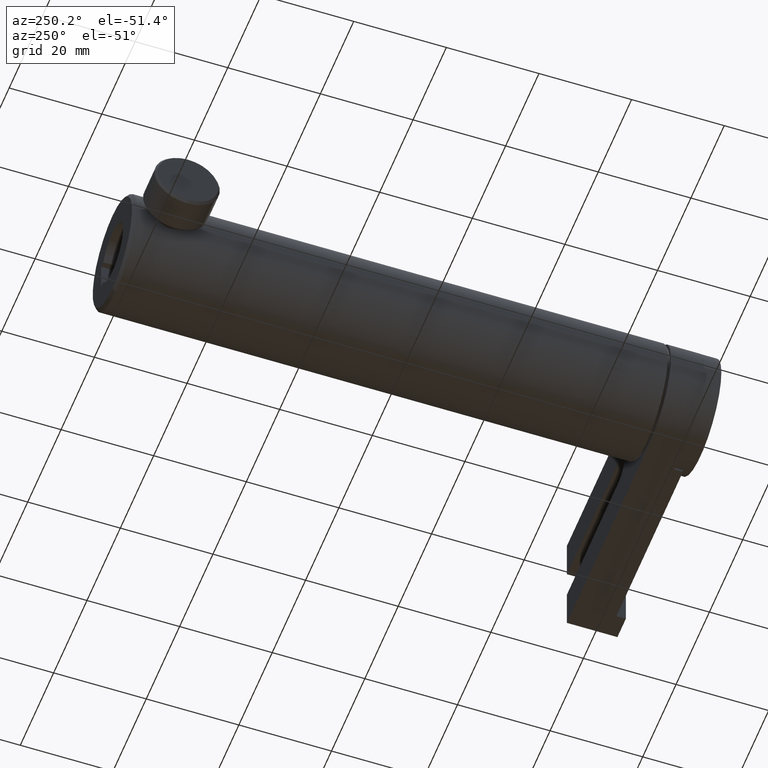
[diagram: clean part render]
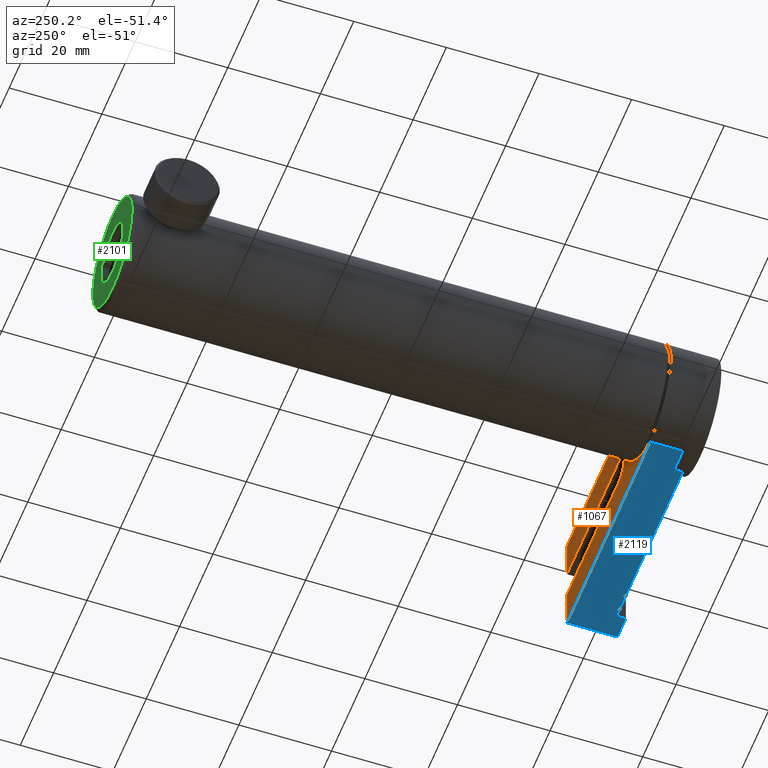
[diagram: same view with three faces highlighted in distinct colors, each labeled with its STEP entity id]
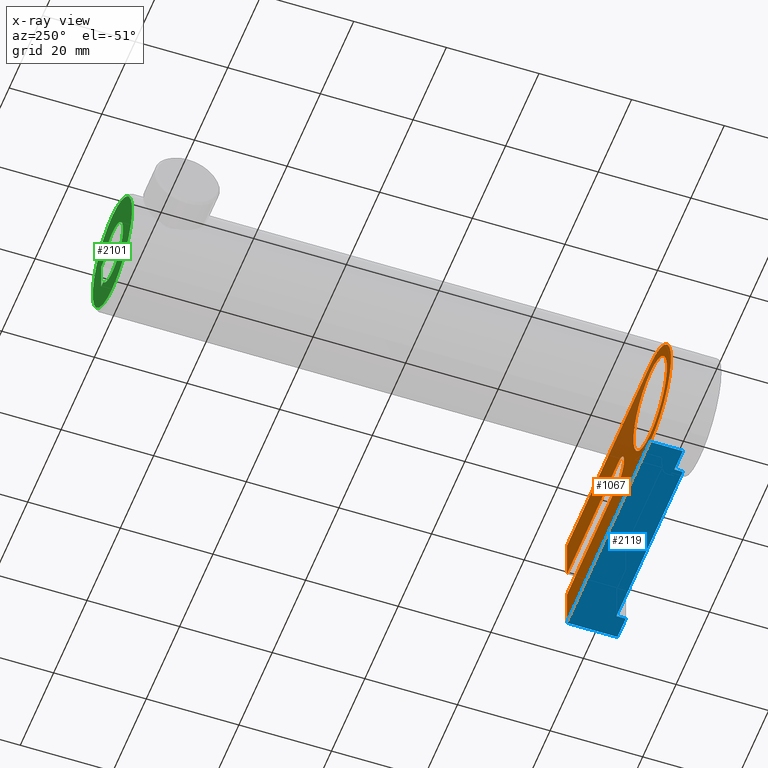
[diagram: x-ray of the same camera — body ghosted, the three highlighted faces saturated]
A machine part, auxiliary view with three faces highlighted in distinct colors.
The next image is the same camera in x-ray (body ghosted, the three faces saturated) — at least one of them is partly hidden behind the body in this view.
Their STEP definitions:

[orange] entity #1067 — the highlighted planar face has unit normal (0, 1, -0).
#116 = ORIENTED_EDGE ( 'NONE', *, *, #1864, .F. ) ;
#184 = CARTESIAN_POINT ( 'NONE',  ( 54.12306664389138400, 5.698134787764893800, 3.365500000000003900 ) ) ;
#220 = CARTESIAN_POINT ( 'NONE',  ( 4.123066643891380800, 5.698134787764893800, 0.0000000000000000000 ) ) ;
#252 = LINE ( 'NONE', #737, #1216 ) ;
#283 = LINE ( 'NONE', #1414, #2823 ) ;
#300 = AXIS2_PLACEMENT_3D ( 'NONE', #2579, #812, #2264 ) ;
#434 = ORIENTED_EDGE ( 'NONE', *, *, #1644, .F. ) ;
#472 = CIRCLE ( 'NONE', #3448, 10.04570000000000200 ) ;
#541 = VERTEX_POINT ( 'NONE', #908 ) ;
#570 = CIRCLE ( 'NONE', #1037, 3.365500000000003000 ) ;
#574 = LINE ( 'NONE', #2895, #1944 ) ;
#591 = DIRECTION ( 'NONE',  ( 0.0000000000000000000, 1.000000000000000000, -0.0000000000000000000 ) ) ;
#612 = VERTEX_POINT ( 'NONE', #1003 ) ;
#725 = CARTESIAN_POINT ( 'NONE',  ( 54.12306664389138400, 5.698134787764893800, 8.999471541716452500E-015 ) ) ;
#727 = ORIENTED_EDGE ( 'NONE', *, *, #2973, .T. ) ;
#737 = CARTESIAN_POINT ( 'NONE',  ( -29.62103515794081700, 5.698134787764893800, -3.365499999999993700 ) ) ;
#739 = DIRECTION ( 'NONE',  ( 0.0000000000000000000, 1.000000000000000000, -0.0000000000000000000 ) ) ;
#758 = FACE_OUTER_BOUND ( 'NONE', #1979, .T. ) ;
#812 = DIRECTION ( 'NONE',  ( 0.0000000000000000000, 1.000000000000000000, -0.0000000000000000000 ) ) ;
#862 = PLANE ( 'NONE',  #3405 ) ;
#885 = ORIENTED_EDGE ( 'NONE', *, *, #2287, .F. ) ;
#908 = CARTESIAN_POINT ( 'NONE',  ( 23.17306664389137800, 5.698134787764893800, -3.365499999999999900 ) ) ;
#945 = EDGE_CURVE ( 'NONE', #3704, #2482, #1744, .T. ) ;
#1003 = CARTESIAN_POINT ( 'NONE',  ( 23.17306664389137800, 5.698134787764893800, 3.365500000000006200 ) ) ;
#1037 = AXIS2_PLACEMENT_3D ( 'NONE', #1038, #739, #3106 ) ;
#1038 = CARTESIAN_POINT ( 'NONE',  ( 23.17306664389138500, 5.698134787764893800, 0.0000000000000000000 ) ) ;
#1067 = ADVANCED_FACE ( 'NONE', ( #758, #1115 ), #862, .T. ) ;
#1069 = CARTESIAN_POINT ( 'NONE',  ( 54.12306664389138400, 5.698134787764893800, -12.49679999999999900 ) ) ;
#1115 = FACE_BOUND ( 'NONE', #3303, .T. ) ;
#1133 = DIRECTION ( 'NONE',  ( 0.0000000000000000000, 0.0000000000000000000, 1.000000000000000000 ) ) ;
#1216 = VECTOR ( 'NONE', #2544, 1000.000000000000000 ) ;
#1246 = VERTEX_POINT ( 'NONE', #184 ) ;
#1414 = CARTESIAN_POINT ( 'NONE',  ( -29.62103515794081700, 5.698134787764893800, 12.49679999999999900 ) ) ;
#1493 = EDGE_CURVE ( 'NONE', #3704, #2398, #2591, .T. ) ;
#1549 = ORIENTED_EDGE ( 'NONE', *, *, #945, .T. ) ;
#1566 = ORIENTED_EDGE ( 'NONE', *, *, #2449, .F. ) ;
#1644 = EDGE_CURVE ( 'NONE', #541, #612, #570, .T. ) ;
#1719 = DIRECTION ( 'NONE',  ( 1.000000000000000000, -0.0000000000000000000, 0.0000000000000000000 ) ) ;
#1744 = CIRCLE ( 'NONE', #3075, 12.49679999999999900 ) ;
#1824 = CARTESIAN_POINT ( 'NONE',  ( 54.12306664389138400, 5.698134787764893800, 8.999471541716452500E-015 ) ) ;
#1835 = ORIENTED_EDGE ( 'NONE', *, *, #1919, .T. ) ;
#1864 = EDGE_CURVE ( 'NONE', #2232, #3569, #472, .T. ) ;
#1919 = EDGE_CURVE ( 'NONE', #2482, #3329, #283, .T. ) ;
#1944 = VECTOR ( 'NONE', #2582, 1000.000000000000000 ) ;
#1975 = CARTESIAN_POINT ( 'NONE',  ( 4.123066643891380800, 5.698134787764893800, 12.49679999999999900 ) ) ;
#1979 = EDGE_LOOP ( 'NONE', ( #1835, #727, #2781, #434, #2596, #885, #2135, #1549 ) ) ;
#2003 = DIRECTION ( 'NONE',  ( 0.0000000000000000000, 1.000000000000000000, -0.0000000000000000000 ) ) ;
#2046 = DIRECTION ( 'NONE',  ( 0.0000000000000000000, 1.000000000000000000, -0.0000000000000000000 ) ) ;
#2097 = DIRECTION ( 'NONE',  ( 0.0000000000000000000, 0.0000000000000000000, -1.000000000000000000 ) ) ;
#2135 = ORIENTED_EDGE ( 'NONE', *, *, #1493, .F. ) ;
#2164 = VERTEX_POINT ( 'NONE', #2715 ) ;
#2182 = DIRECTION ( 'NONE',  ( 0.0000000000000000000, 0.0000000000000000000, 1.000000000000000000 ) ) ;
#2232 = VERTEX_POINT ( 'NONE', #2766 ) ;
#2264 = DIRECTION ( 'NONE',  ( 0.0000000000000000000, 0.0000000000000000000, 1.000000000000000000 ) ) ;
#2287 = EDGE_CURVE ( 'NONE', #2398, #2164, #3615, .T. ) ;
#2398 = VERTEX_POINT ( 'NONE', #1069 ) ;
#2449 = EDGE_CURVE ( 'NONE', #3569, #2232, #2880, .T. ) ;
#2482 = VERTEX_POINT ( 'NONE', #1975 ) ;
#2494 = CARTESIAN_POINT ( 'NONE',  ( 4.123066643891380800, 5.698134787764893800, -12.49679999999999900 ) ) ;
#2544 = DIRECTION ( 'NONE',  ( -1.000000000000000000, 0.0000000000000000000, 1.261107535039681900E-016 ) ) ;
#2550 = EDGE_CURVE ( 'NONE', #1246, #612, #574, .T. ) ;
#2579 = CARTESIAN_POINT ( 'NONE',  ( 4.123066643891380800, 5.698134787764893800, 0.0000000000000000000 ) ) ;
#2582 = DIRECTION ( 'NONE',  ( -1.000000000000000000, 0.0000000000000000000, 7.006152972442677000E-017 ) ) ;
#2591 = LINE ( 'NONE', #2808, #2784 ) ;
#2596 = ORIENTED_EDGE ( 'NONE', *, *, #3730, .F. ) ;
#2715 = CARTESIAN_POINT ( 'NONE',  ( 54.12306664389138400, 5.698134787764893800, -3.365500000000003900 ) ) ;
#2766 = CARTESIAN_POINT ( 'NONE',  ( 4.123066643891381700, 5.698134787764893800, 10.04570000000000200 ) ) ;
#2781 = ORIENTED_EDGE ( 'NONE', *, *, #2550, .T. ) ;
#2784 = VECTOR ( 'NONE', #3388, 1000.000000000000000 ) ;
#2808 = CARTESIAN_POINT ( 'NONE',  ( -29.62103515794081700, 5.698134787764893800, -12.49679999999999900 ) ) ;
#2823 = VECTOR ( 'NONE', #1719, 1000.000000000000000 ) ;
#2880 = CIRCLE ( 'NONE', #300, 10.04570000000000200 ) ;
#2895 = CARTESIAN_POINT ( 'NONE',  ( -29.62103515794081700, 5.698134787764893800, 3.365500000000010200 ) ) ;
#2916 = CARTESIAN_POINT ( 'NONE',  ( -29.62103515794081700, 5.698134787764893800, 8.999471541716452500E-015 ) ) ;
#2929 = CARTESIAN_POINT ( 'NONE',  ( 54.12306664389138400, 5.698134787764893800, 12.49679999999999900 ) ) ;
#2971 = VECTOR ( 'NONE', #2182, 1000.000000000000000 ) ;
#2973 = EDGE_CURVE ( 'NONE', #3329, #1246, #3586, .T. ) ;
#3075 = AXIS2_PLACEMENT_3D ( 'NONE', #3634, #2046, #1133 ) ;
#3106 = DIRECTION ( 'NONE',  ( 0.0000000000000000000, 0.0000000000000000000, 1.000000000000000000 ) ) ;
#3171 = DIRECTION ( 'NONE',  ( 0.0000000000000000000, 0.0000000000000000000, 1.000000000000000000 ) ) ;
#3303 = EDGE_LOOP ( 'NONE', ( #1566, #116 ) ) ;
#3329 = VERTEX_POINT ( 'NONE', #2929 ) ;
#3388 = DIRECTION ( 'NONE',  ( 1.000000000000000000, -0.0000000000000000000, 0.0000000000000000000 ) ) ;
#3405 = AXIS2_PLACEMENT_3D ( 'NONE', #2916, #591, #3528 ) ;
#3448 = AXIS2_PLACEMENT_3D ( 'NONE', #220, #2003, #3171 ) ;
#3493 = VECTOR ( 'NONE', #2097, 1000.000000000000000 ) ;
#3528 = DIRECTION ( 'NONE',  ( 0.0000000000000000000, 0.0000000000000000000, 1.000000000000000000 ) ) ;
#3569 = VERTEX_POINT ( 'NONE', #3650 ) ;
#3586 = LINE ( 'NONE', #1824, #3493 ) ;
#3615 = LINE ( 'NONE', #725, #2971 ) ;
#3634 = CARTESIAN_POINT ( 'NONE',  ( 4.123066643891380800, 5.698134787764893800, 0.0000000000000000000 ) ) ;
#3650 = CARTESIAN_POINT ( 'NONE',  ( 4.123066643891380800, 5.698134787764893800, -10.04570000000000200 ) ) ;
#3704 = VERTEX_POINT ( 'NONE', #2494 ) ;
#3730 = EDGE_CURVE ( 'NONE', #2164, #541, #252, .T. ) ;

[blue] entity #2119 — the highlighted planar face has unit normal (0, 0, -1).
#168 = ORIENTED_EDGE ( 'NONE', *, *, #3695, .F. ) ;
#179 = CARTESIAN_POINT ( 'NONE',  ( 9.203066643891382600, -1.363065212235106600, -12.49679999999999900 ) ) ;
#305 = EDGE_CURVE ( 'NONE', #2398, #2831, #2496, .T. ) ;
#308 = DIRECTION ( 'NONE',  ( -0.0000000000000000000, -1.000000000000000000, -0.0000000000000000000 ) ) ;
#439 = ORIENTED_EDGE ( 'NONE', *, *, #2049, .F. ) ;
#477 = LINE ( 'NONE', #3639, #2733 ) ;
#486 = LINE ( 'NONE', #2061, #900 ) ;
#607 = VECTOR ( 'NONE', #1621, 1000.000000000000000 ) ;
#631 = VERTEX_POINT ( 'NONE', #2161 ) ;
#781 = EDGE_CURVE ( 'NONE', #3242, #2170, #3691, .T. ) ;
#872 = CARTESIAN_POINT ( 'NONE',  ( -29.62103515794081700, -5.223865212235105900, -12.49679999999999900 ) ) ;
#900 = VECTOR ( 'NONE', #308, 1000.000000000000000 ) ;
#998 = DIRECTION ( 'NONE',  ( 1.000000000000000000, 0.0000000000000000000, 0.0000000000000000000 ) ) ;
#1048 = DIRECTION ( 'NONE',  ( 0.0000000000000000000, -1.000000000000000000, 0.0000000000000000000 ) ) ;
#1069 = CARTESIAN_POINT ( 'NONE',  ( 54.12306664389138400, 5.698134787764893800, -12.49679999999999900 ) ) ;
#1136 = VERTEX_POINT ( 'NONE', #1192 ) ;
#1192 = CARTESIAN_POINT ( 'NONE',  ( 49.04306664389137900, -3.191865212235105400, -12.49679999999999900 ) ) ;
#1238 = CARTESIAN_POINT ( 'NONE',  ( 9.203066643891382600, -3.191865212235105400, -12.49679999999999900 ) ) ;
#1268 = CARTESIAN_POINT ( 'NONE',  ( 54.12306664389138400, 5.698134787764893800, -12.49679999999999900 ) ) ;
#1314 = ORIENTED_EDGE ( 'NONE', *, *, #305, .T. ) ;
#1356 = ORIENTED_EDGE ( 'NONE', *, *, #2035, .F. ) ;
#1418 = AXIS2_PLACEMENT_3D ( 'NONE', #3597, #2998, #3629 ) ;
#1493 = EDGE_CURVE ( 'NONE', #3704, #2398, #2591, .T. ) ;
#1516 = VECTOR ( 'NONE', #3600, 1000.000000000000000 ) ;
#1586 = EDGE_CURVE ( 'NONE', #2170, #1136, #477, .T. ) ;
#1621 = DIRECTION ( 'NONE',  ( 0.0000000000000000000, -1.000000000000000000, 0.0000000000000000000 ) ) ;
#1647 = CARTESIAN_POINT ( 'NONE',  ( 23.17306664389138500, -1.363065212235106600, -12.49679999999999900 ) ) ;
#1705 = VERTEX_POINT ( 'NONE', #3406 ) ;
#1718 = LINE ( 'NONE', #3417, #3664 ) ;
#1812 = PLANE ( 'NONE',  #1418 ) ;
#2035 = EDGE_CURVE ( 'NONE', #3704, #631, #486, .T. ) ;
#2049 = EDGE_CURVE ( 'NONE', #1705, #2831, #3758, .T. ) ;
#2061 = CARTESIAN_POINT ( 'NONE',  ( 4.123066643891380800, 5.698134787764893800, -12.49679999999999900 ) ) ;
#2087 = CARTESIAN_POINT ( 'NONE',  ( 54.12306664389138400, -5.223865212235105900, -12.49679999999999900 ) ) ;
#2119 = ADVANCED_FACE ( 'NONE', ( #2235 ), #1812, .T. ) ;
#2161 = CARTESIAN_POINT ( 'NONE',  ( 4.123066643891380800, -1.363065212235106600, -12.49679999999999900 ) ) ;
#2170 = VERTEX_POINT ( 'NONE', #1238 ) ;
#2235 = FACE_OUTER_BOUND ( 'NONE', #3197, .T. ) ;
#2302 = ORIENTED_EDGE ( 'NONE', *, *, #781, .F. ) ;
#2391 = EDGE_CURVE ( 'NONE', #631, #3242, #2645, .T. ) ;
#2398 = VERTEX_POINT ( 'NONE', #1069 ) ;
#2494 = CARTESIAN_POINT ( 'NONE',  ( 4.123066643891380800, 5.698134787764893800, -12.49679999999999900 ) ) ;
#2496 = LINE ( 'NONE', #1268, #1516 ) ;
#2591 = LINE ( 'NONE', #2808, #2784 ) ;
#2602 = VECTOR ( 'NONE', #3415, 1000.000000000000000 ) ;
#2645 = LINE ( 'NONE', #1647, #2602 ) ;
#2733 = VECTOR ( 'NONE', #998, 1000.000000000000000 ) ;
#2784 = VECTOR ( 'NONE', #3388, 1000.000000000000000 ) ;
#2808 = CARTESIAN_POINT ( 'NONE',  ( -29.62103515794081700, 5.698134787764893800, -12.49679999999999900 ) ) ;
#2831 = VERTEX_POINT ( 'NONE', #2087 ) ;
#2937 = DIRECTION ( 'NONE',  ( 1.000000000000000000, -0.0000000000000000000, 0.0000000000000000000 ) ) ;
#2998 = DIRECTION ( 'NONE',  ( 0.0000000000000000000, 0.0000000000000000000, -1.000000000000000000 ) ) ;
#3197 = EDGE_LOOP ( 'NONE', ( #3576, #1356, #3425, #1314, #439, #168, #3816, #2302 ) ) ;
#3242 = VERTEX_POINT ( 'NONE', #179 ) ;
#3388 = DIRECTION ( 'NONE',  ( 1.000000000000000000, -0.0000000000000000000, 0.0000000000000000000 ) ) ;
#3392 = CARTESIAN_POINT ( 'NONE',  ( 9.203066643891382600, -1.363065212235106600, -12.49679999999999900 ) ) ;
#3406 = CARTESIAN_POINT ( 'NONE',  ( 49.04306664389137900, -5.223865212235105900, -12.49679999999999900 ) ) ;
#3415 = DIRECTION ( 'NONE',  ( 1.000000000000000000, 0.0000000000000000000, 0.0000000000000000000 ) ) ;
#3417 = CARTESIAN_POINT ( 'NONE',  ( 49.04306664389137900, -3.191865212235105400, -12.49679999999999900 ) ) ;
#3425 = ORIENTED_EDGE ( 'NONE', *, *, #1493, .T. ) ;
#3576 = ORIENTED_EDGE ( 'NONE', *, *, #2391, .F. ) ;
#3597 = CARTESIAN_POINT ( 'NONE',  ( -29.62103515794081700, 5.698134787764893800, -12.49679999999999900 ) ) ;
#3600 = DIRECTION ( 'NONE',  ( -0.0000000000000000000, -1.000000000000000000, -0.0000000000000000000 ) ) ;
#3629 = DIRECTION ( 'NONE',  ( -1.000000000000000000, 0.0000000000000000000, -0.0000000000000000000 ) ) ;
#3639 = CARTESIAN_POINT ( 'NONE',  ( -29.62103515794081700, -3.191865212235105400, -12.49679999999999900 ) ) ;
#3664 = VECTOR ( 'NONE', #1048, 1000.000000000000000 ) ;
#3691 = LINE ( 'NONE', #3392, #607 ) ;
#3695 = EDGE_CURVE ( 'NONE', #1136, #1705, #1718, .T. ) ;
#3704 = VERTEX_POINT ( 'NONE', #2494 ) ;
#3758 = LINE ( 'NONE', #872, #3801 ) ;
#3801 = VECTOR ( 'NONE', #2937, 1000.000000000000000 ) ;
#3816 = ORIENTED_EDGE ( 'NONE', *, *, #1586, .F. ) ;

[green] entity #2101 — the highlighted planar face has unit normal (0, 1, 0).
#38 = AXIS2_PLACEMENT_3D ( 'NONE', #1873, #1218, #678 ) ;
#45 = DIRECTION ( 'NONE',  ( -1.000000000000000000, 0.0000000000000000000, 0.0000000000000000000 ) ) ;
#47 = CARTESIAN_POINT ( 'NONE',  ( 4.123066643891380800, 121.8271347877649000, -1.839923381405735800E-015 ) ) ;
#73 = VERTEX_POINT ( 'NONE', #1405 ) ;
#108 = CIRCLE ( 'NONE', #729, 6.388100000000000600 ) ;
#154 = DIRECTION ( 'NONE',  ( 1.000000000000000000, -0.0000000000000000000, -0.0000000000000000000 ) ) ;
#222 = DIRECTION ( 'NONE',  ( 0.0000000000000000000, 1.000000000000000000, 0.0000000000000000000 ) ) ;
#229 = CARTESIAN_POINT ( 'NONE',  ( 4.123066643891381700, 121.8271347877649000, 6.388099999999998800 ) ) ;
#248 = CARTESIAN_POINT ( 'NONE',  ( 4.123066643891380800, 121.8271347877649000, -1.839923381405735800E-015 ) ) ;
#392 = DIRECTION ( 'NONE',  ( 0.0000000000000000000, 1.000000000000000000, 0.0000000000000000000 ) ) ;
#402 = AXIS2_PLACEMENT_3D ( 'NONE', #2810, #3150, #3402 ) ;
#465 = EDGE_CURVE ( 'NONE', #2499, #3698, #2165, .T. ) ;
#525 = AXIS2_PLACEMENT_3D ( 'NONE', #47, #3553, #2370 ) ;
#578 = FACE_OUTER_BOUND ( 'NONE', #2131, .T. ) ;
#586 = CARTESIAN_POINT ( 'NONE',  ( 10.85406664389138400, 121.8271347877649000, -3.225800000000002700 ) ) ;
#598 = DIRECTION ( 'NONE',  ( -0.0000000000000000000, -0.0000000000000000000, -1.000000000000000000 ) ) ;
#633 = EDGE_CURVE ( 'NONE', #3698, #1942, #108, .T. ) ;
#678 = DIRECTION ( 'NONE',  ( 0.0000000000000000000, -0.0000000000000000000, 1.000000000000000000 ) ) ;
#685 = CARTESIAN_POINT ( 'NONE',  ( 4.123066643891380800, 121.8271347877649000, -1.839923381405735800E-015 ) ) ;
#694 = DIRECTION ( 'NONE',  ( 0.0000000000000000000, 0.0000000000000000000, 1.000000000000000000 ) ) ;
#729 = AXIS2_PLACEMENT_3D ( 'NONE', #685, #392, #694 ) ;
#751 = CARTESIAN_POINT ( 'NONE',  ( 4.123066643891382600, 121.8271347877649000, 11.79680000000008800 ) ) ;
#757 = VECTOR ( 'NONE', #45, 1000.000000000000000 ) ;
#889 = VERTEX_POINT ( 'NONE', #3606 ) ;
#949 = CARTESIAN_POINT ( 'NONE',  ( 4.123066643891380800, 121.8271347877649000, -1.839923381405735800E-015 ) ) ;
#1018 = VECTOR ( 'NONE', #154, 1000.000000000000000 ) ;
#1159 = AXIS2_PLACEMENT_3D ( 'NONE', #248, #222, #2282 ) ;
#1218 = DIRECTION ( 'NONE',  ( 0.0000000000000000000, 1.000000000000000000, 0.0000000000000000000 ) ) ;
#1225 = PLANE ( 'NONE',  #38 ) ;
#1404 = ORIENTED_EDGE ( 'NONE', *, *, #3436, .F. ) ;
#1405 = CARTESIAN_POINT ( 'NONE',  ( 4.123066643891380800, 121.8271347877649000, -11.79680000000009200 ) ) ;
#1443 = VECTOR ( 'NONE', #598, 1000.000000000000000 ) ;
#1476 = LINE ( 'NONE', #3670, #1018 ) ;
#1513 = DIRECTION ( 'NONE',  ( 0.0000000000000000000, 1.000000000000000000, 0.0000000000000000000 ) ) ;
#1553 = EDGE_CURVE ( 'NONE', #889, #3096, #1476, .T. ) ;
#1592 = VERTEX_POINT ( 'NONE', #751 ) ;
#1823 = LINE ( 'NONE', #2063, #1443 ) ;
#1846 = CIRCLE ( 'NONE', #2989, 11.79680000000009000 ) ;
#1873 = CARTESIAN_POINT ( 'NONE',  ( 4.123066643891380800, 121.8271347877649000, -1.839923381405735800E-015 ) ) ;
#1942 = VERTEX_POINT ( 'NONE', #229 ) ;
#1970 = EDGE_CURVE ( 'NONE', #3105, #2499, #3502, .T. ) ;
#2009 = ORIENTED_EDGE ( 'NONE', *, *, #2949, .T. ) ;
#2063 = CARTESIAN_POINT ( 'NONE',  ( 10.85406664389138400, 121.8271347877649000, -3.225800000000002700 ) ) ;
#2101 = ADVANCED_FACE ( 'NONE', ( #578, #3249 ), #1225, .T. ) ;
#2131 = EDGE_LOOP ( 'NONE', ( #2009, #2194 ) ) ;
#2165 = CIRCLE ( 'NONE', #525, 6.388100000000000600 ) ;
#2194 = ORIENTED_EDGE ( 'NONE', *, *, #3227, .T. ) ;
#2236 = CARTESIAN_POINT ( 'NONE',  ( 4.123066643891380800, 121.8271347877649000, -6.388100000000002300 ) ) ;
#2282 = DIRECTION ( 'NONE',  ( 0.0000000000000000000, 0.0000000000000000000, 1.000000000000000000 ) ) ;
#2294 = CARTESIAN_POINT ( 'NONE',  ( 9.636870772621382000, 121.8271347877649000, -3.225800000000002700 ) ) ;
#2326 = CIRCLE ( 'NONE', #402, 11.79680000000009000 ) ;
#2330 = EDGE_LOOP ( 'NONE', ( #3552, #3031, #3546, #3273, #2472, #1404 ) ) ;
#2370 = DIRECTION ( 'NONE',  ( 0.0000000000000000000, 0.0000000000000000000, 1.000000000000000000 ) ) ;
#2411 = DIRECTION ( 'NONE',  ( 0.0000000000000000000, 0.0000000000000000000, 1.000000000000000000 ) ) ;
#2472 = ORIENTED_EDGE ( 'NONE', *, *, #1970, .F. ) ;
#2499 = VERTEX_POINT ( 'NONE', #2294 ) ;
#2765 = CARTESIAN_POINT ( 'NONE',  ( 10.85406664389138400, 121.8271347877649000, 3.225799999999997300 ) ) ;
#2810 = CARTESIAN_POINT ( 'NONE',  ( 4.123066643891380800, 121.8271347877649000, -1.839923381405735800E-015 ) ) ;
#2949 = EDGE_CURVE ( 'NONE', #73, #1592, #1846, .T. ) ;
#2989 = AXIS2_PLACEMENT_3D ( 'NONE', #949, #1513, #2411 ) ;
#3031 = ORIENTED_EDGE ( 'NONE', *, *, #3774, .F. ) ;
#3096 = VERTEX_POINT ( 'NONE', #2765 ) ;
#3105 = VERTEX_POINT ( 'NONE', #3636 ) ;
#3150 = DIRECTION ( 'NONE',  ( 0.0000000000000000000, 1.000000000000000000, 0.0000000000000000000 ) ) ;
#3227 = EDGE_CURVE ( 'NONE', #1592, #73, #2326, .T. ) ;
#3249 = FACE_BOUND ( 'NONE', #2330, .T. ) ;
#3273 = ORIENTED_EDGE ( 'NONE', *, *, #465, .F. ) ;
#3402 = DIRECTION ( 'NONE',  ( 0.0000000000000000000, 0.0000000000000000000, 1.000000000000000000 ) ) ;
#3428 = CIRCLE ( 'NONE', #1159, 6.388100000000000600 ) ;
#3436 = EDGE_CURVE ( 'NONE', #3096, #3105, #1823, .T. ) ;
#3502 = LINE ( 'NONE', #586, #757 ) ;
#3546 = ORIENTED_EDGE ( 'NONE', *, *, #633, .F. ) ;
#3552 = ORIENTED_EDGE ( 'NONE', *, *, #1553, .F. ) ;
#3553 = DIRECTION ( 'NONE',  ( 0.0000000000000000000, 1.000000000000000000, 0.0000000000000000000 ) ) ;
#3606 = CARTESIAN_POINT ( 'NONE',  ( 9.636870772621383800, 121.8271347877649000, 3.225799999999997300 ) ) ;
#3636 = CARTESIAN_POINT ( 'NONE',  ( 10.85406664389138400, 121.8271347877649000, -3.225800000000002700 ) ) ;
#3670 = CARTESIAN_POINT ( 'NONE',  ( 10.85406664389138400, 121.8271347877649000, 3.225799999999997300 ) ) ;
#3698 = VERTEX_POINT ( 'NONE', #2236 ) ;
#3774 = EDGE_CURVE ( 'NONE', #1942, #889, #3428, .T. ) ;